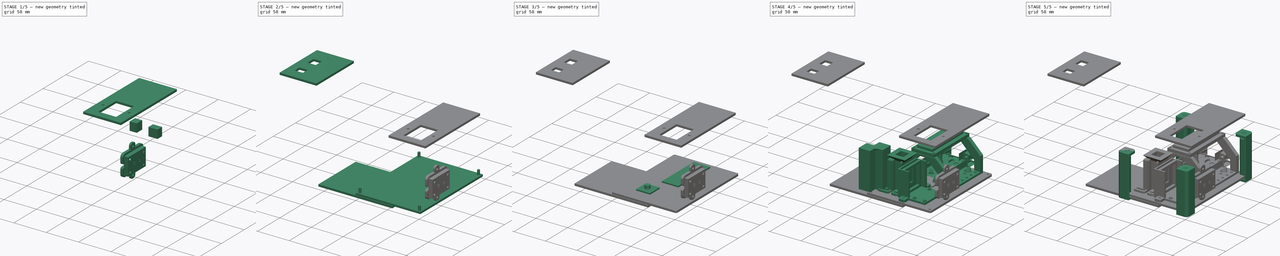
[diagram: build sequence overview — one tinted view per stage of 5, left to right]
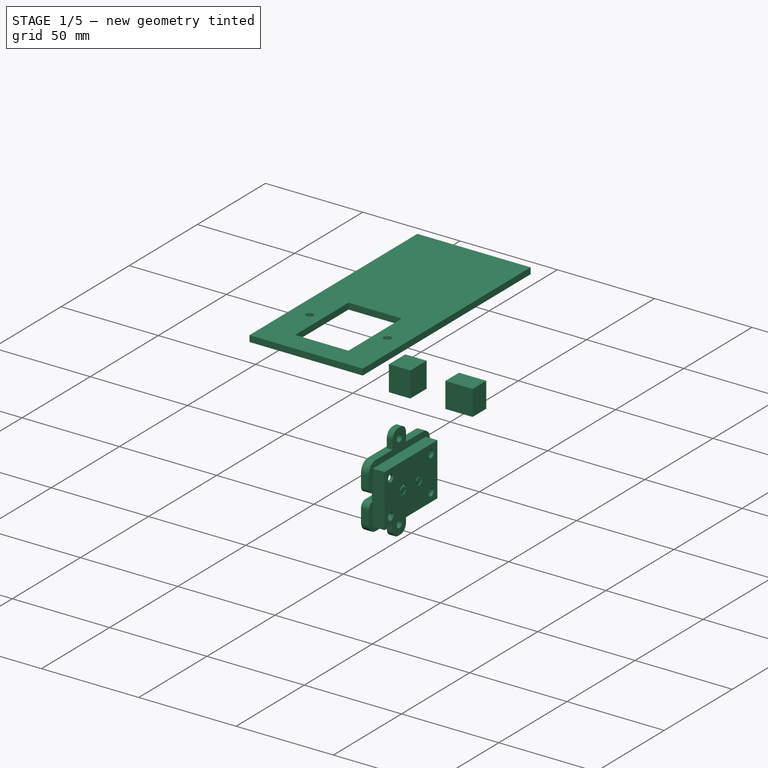
[diagram: stage 1 of 5 — iso view after this stage's code; geometry added in this stage tinted green]
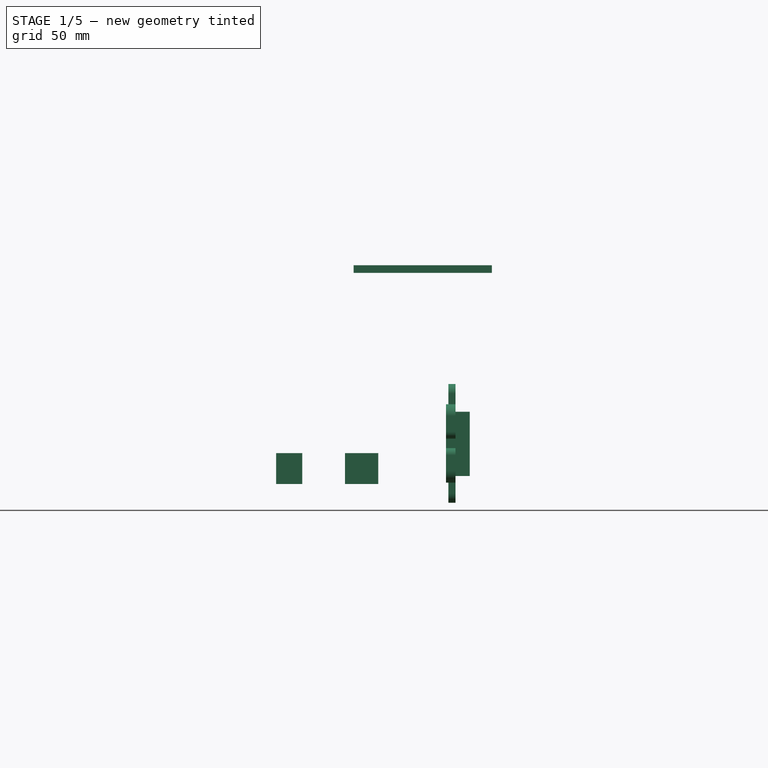
[diagram: stage 1 of 5 — front view after this stage's code; geometry added in this stage tinted green]
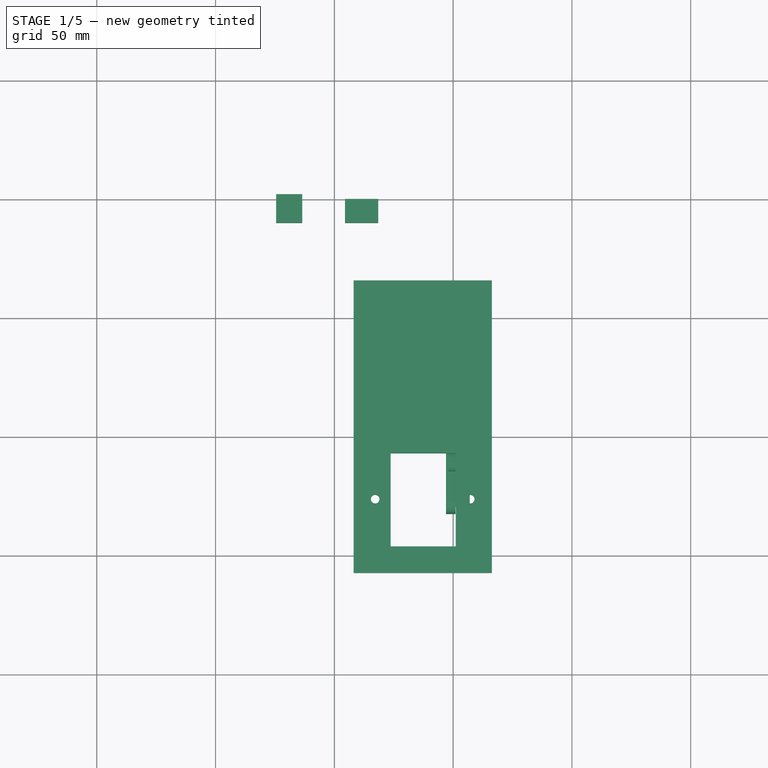
[diagram: stage 1 of 5 — top view after this stage's code; geometry added in this stage tinted green]
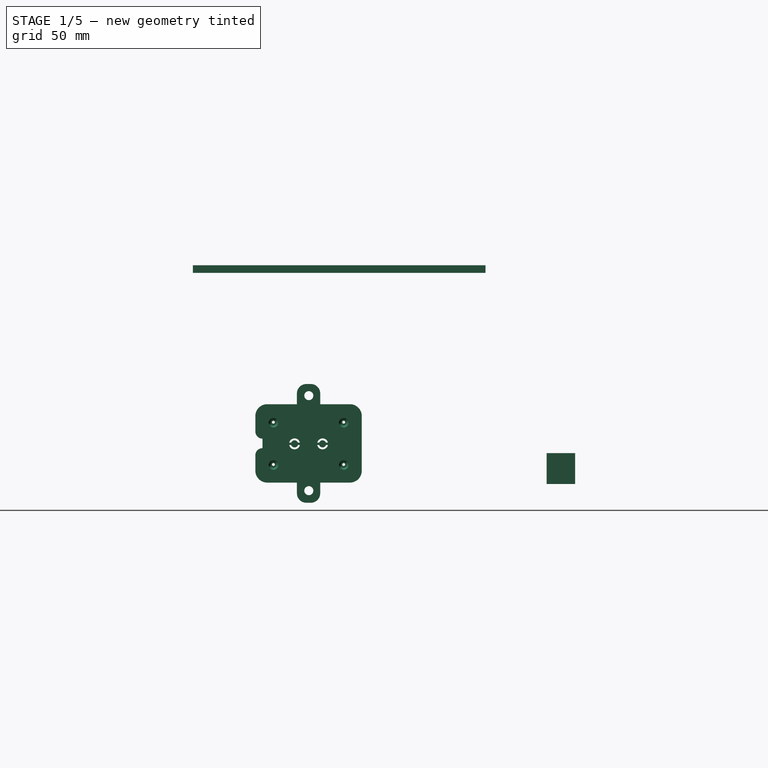
[diagram: stage 1 of 5 — right view after this stage's code; geometry added in this stage tinted green]
FCSTD DOCUMENT  (FreeCAD 0.19R23578 (Git))
Label: od600
License: FreeArt
LicenseURL: http://artlibre.org/licence/lal
objects: Part::FeaturePython×18, Part::Feature×11, Part::Box×11, Part::MultiFuse×9, Part::Mirroring×5, Part::Cut×5, App::Part×5, Part::Offset×5, TechDraw::DrawViewPart×5, Part::Cylinder×4, PartDesign::FeatureBase×4, PartDesign::Body×4, Part::Fillet×3, PartDesign::Plane×2, Sketcher::SketchObject×2, PartDesign::Pad×2, Part::Compound×2, Spreadsheet::Sheet×1, Part::Part2DObjectPython×1, Part::Cone×1, +3 more types
note: 90 computed .brp shape members not serialized (recipe doc carries the construction recipe); baked Part::Feature solids carry a one-line shape summary decoded from their .brp

FEATURE [TechDraw::DrawViewPart] hole_side_wall_contour001
  CoarseView = true
  Direction = (0,0,1)
  Focus = 100
  HardHidden = false
  IsoCount = 0
  IsoHidden = false
  IsoVisible = false
  LockPosition = false
  Perspective = false
  Rotation = 0
  ScaleType = 2
  SeamHidden = false
  SeamVisible = true
  SmoothHidden = false
  SmoothVisible = true
  Source = -> [hole_side_wall_offset001]
  X = 30.1
  XDirection = (1,0,0)
  Y = 289.9
FEATURE [Part::Box] Box016  label="power hole cube"
  AttacherType = Attacher::AttachEngine3D
  Height = 13
  Length = 11
  Placement = pos=(25.5,140,12) rot=(0,0,1;0rad)
  Width = 12
FEATURE [Part::Box] Box017  label="usb hole cube"
  AttacherType = Attacher::AttachEngine3D
  Height = 13
  Length = 14
  Placement = pos=(54.5,140,12) rot=(0,0,1;0rad)
  Width = 10
FEATURE [App::Part] Part009  label="y side wall part"
  Group = -> [Box015,Part__Mirroring003,Fusion002007,Box016,Box017,Cut003002014]
  Origin = -> Origin016
  Placement = pos=(0,-3,0) rot=(0,0,1;0rad)
FEATURE [Part::Box] Box018  label="x side wall"
  AttacherType = Attacher::AttachEngine3D
  Height = 58
  Length = 3
  Placement = pos=(0,9,0) rot=(0,0,1;0rad)
  Width = 123
  expr: Height = <<p>>.corner_internal_height + 2 * <<p>>.plate_z
  expr: .Placement.Base.y = <<p>>.corner_width - <<p>>.corner_removal_cube_off - <<p>>.plate_space_extract_off
  expr: Width = <<p>>.plate_y - 2 * (<<p>>.corner_width - <<p>>.corner_removal_cube_off - <<p>>.plate_space_extract_off)
FEATURE [TechDraw::DrawViewPart] hole_side_wall_cut_contour
  CoarseView = true
  Direction = (0,0,1)
  Focus = 100
  HardHidden = false
  IsoCount = 0
  IsoHidden = false
  IsoVisible = false
  LockPosition = false
  Perspective = false
  Rotation = 0
  ScaleType = 2
  SeamHidden = false
  SeamVisible = true
  SmoothHidden = false
  SmoothVisible = true
  Source = -> [hole_side_wall_cut_offset]
  X = 30.1
  XDirection = (1,0,0)
  Y = 513.7
FEATURE [Part::Mirroring] Part__Mirroring004  label="x side wall (Mirror #5)"
  Base = (52,0,0)
  Normal = (1,0,0)
  Source = -> Box018
  expr: .Base.x = <<p>>.plate_x / 2 + <<p>>.plate_z - 2
FEATURE [Part::Feature] Fillet003001  label="base cut fillet001"
  shape: bbox 44.8 x 50 x 4 mm, 46 faces (baked)
FEATURE [Part::Feature] Fusion005001  label="top cover plate fusion001"
  Placement = pos=(0,24,-5) rot=(1,0,0;3.14159rad)
  shape: bbox 38.8 x 27 x 6.5 mm, 37 faces (baked)
FEATURE [Part::MultiFuse] Fusion005002  label="2 buttons mockup"
  Placement = pos=(101,22,41) rot=(0.57735,0.57735,-0.57735;4.18879rad)
  Shapes = -> [Fusion005001,Fillet003001]
FEATURE [Part::Cylinder] Cylinder008  label="btn bolt hole"
  Angle = 360
  AttacherType = Attacher::AttachEngine3D
  Height = 10
  Placement = pos=(0,0,0) rot=(0,1,0;1.5708rad)
  Radius = 1.9
  expr: Radius = <<p>>.plate_hole_r
FEATURE [Part::FeaturePython] Array006  label="btn bolt hole array"  # Draft array (typed FeaturePython)
  Angle = 360
  ArrayType = 0
  Axis = (0,0,1)
  Base = -> Cylinder008
  Center = (0,0,0)
  Count = 2
  ExpandArray = false
  Fuse = false
  IntervalAxis = (0,0,0)
  IntervalX = (100,0,0)
  IntervalY = (0,100,0)
  IntervalZ = (0,0,40)
  NumberCircles = 3
  NumberPolar = 5
  NumberX = 1
  NumberY = 1
  NumberZ = 2
  Placement = pos=(100,40,9) rot=(0,0,1;0rad)
  PlacementList = 2 placements: [(0,0,0),(0,0,40)]
  RadialDistance = 50
  ScaleList = (2) [(1,1,1),(1,1,1)]
  Symmetry = 1
  TangentialDistance = 25
FEATURE [Part::Box] Box019  label="2 btn hole"
  AttacherType = Attacher::AttachEngine3D
  Height = 27.6
  Length = 10
  Placement = pos=(97,20,15) rot=(0,0,1;0rad)
  Width = 39.4
FEATURE [Part::MultiFuse] Fusion005003  label="wall hole fusion"
  Shapes = -> [Array006,Box019]
FEATURE [Part::Cut] Cut003002015  label="x side wall with hole"
  Base = -> Part__Mirroring004
  Tool = -> Fusion005003
FEATURE [App::Part] Part010  label="x side wall part"
  Group = -> [Box018,Part__Mirroring004,Cylinder008,Box019,Array006,Fusion005003,Cut003002015]
  Origin = -> Origin017
FEATURE [Part::Offset] x_side_wall_with_hole_offset
  Fill = false
  Intersection = false
  Join = 2
  Mode = 0
  Placement = pos=(116.2,-17.8,-8e-16) rot=(0,-1,0;1.5708rad)
  SelfIntersection = false
  Source = -> Cut003002015
  Value = 0.1
FEATURE [App::DocumentObjectGroup] LaserCutterExportObjects
  Group = -> [top_plate_cut_offset,hole_side_wall_offset001,x_side_wall_offset,hole_side_wall_cut_offset,x_side_wall_with_hole_offset]
FEATURE [TechDraw::DrawViewPart] x_side_wall_with_hole_contour
  CoarseView = true
  Direction = (0,0,1)
  Focus = 100
  HardHidden = false
  IsoCount = 0
  IsoHidden = false
  IsoVisible = false
  LockPosition = false
  Perspective = false
  Rotation = 0
  ScaleType = 2
  SeamHidden = false
  SeamVisible = true
  SmoothHidden = false
  SmoothVisible = true
  Source = -> [x_side_wall_with_hole_offset]
  X = 29.3
  XDirection = (1,0,0)
  Y = 621.6
FEATURE [TechDraw::DrawPage] LaserCutterExport
  KeepUpdated = true
  NextBalloonIndex = 1
  ProjectionType = 0
  Template = -> Template
  Views = -> [top_plate_cut_contour,hole_side_wall_contour001,x_side_wall_contour,hole_side_wall_cut_contour,x_side_wall_with_hole_contour]
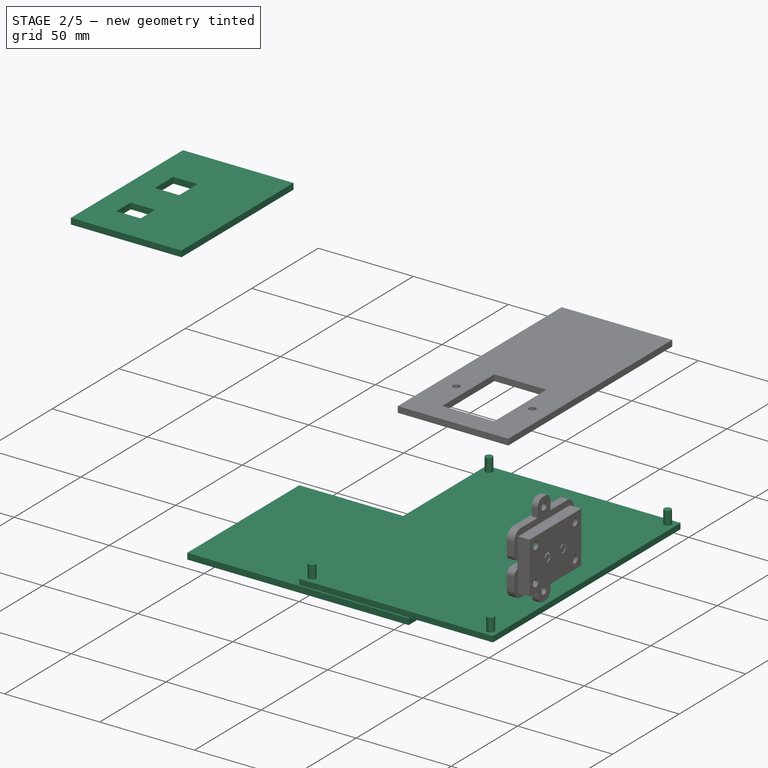
[diagram: stage 2 of 5 — iso view after this stage's code; geometry added in this stage tinted green]
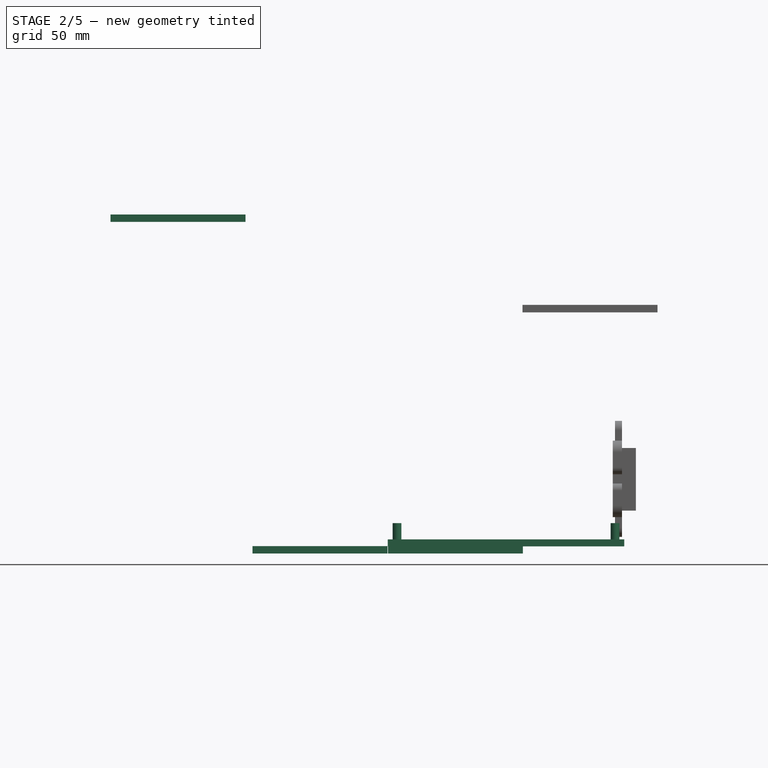
[diagram: stage 2 of 5 — front view after this stage's code; geometry added in this stage tinted green]
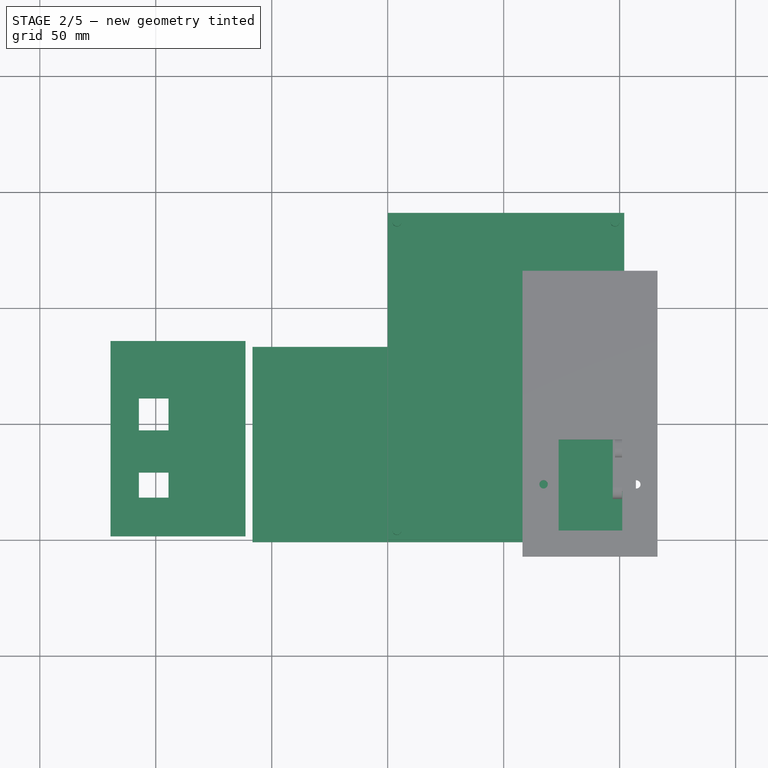
[diagram: stage 2 of 5 — top view after this stage's code; geometry added in this stage tinted green]
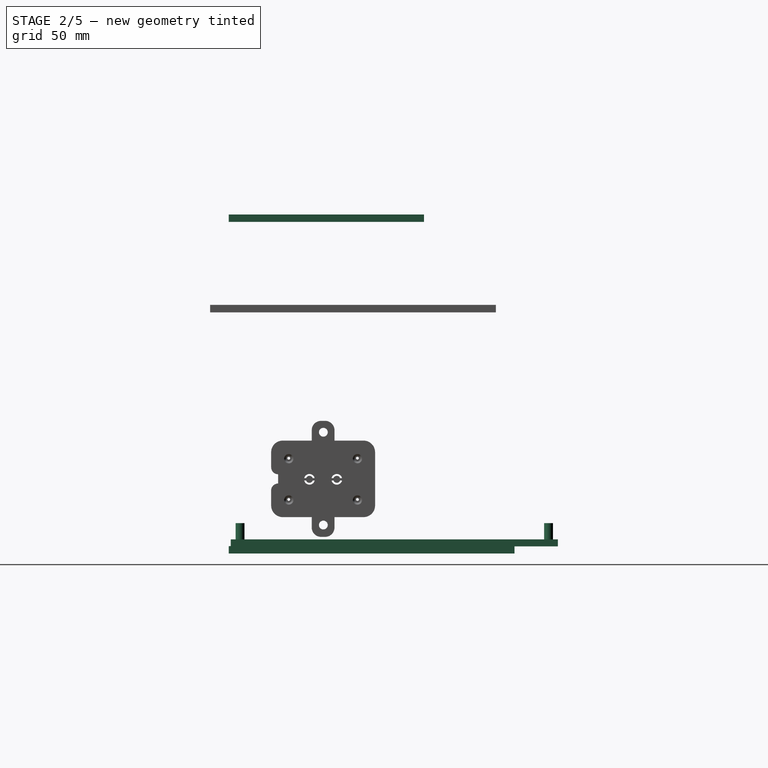
[diagram: stage 2 of 5 — right view after this stage's code; geometry added in this stage tinted green]
FEATURE [Spreadsheet::Sheet] Spreadsheet  label="p"
  cells = A1=plate_x; B1(plate_x)=102; A2=plate_y; B2(plate_y)=141; A3=plate_z; B3(plate_z)=3; A4=plate_hole_dist; B4(plate_hole_dist)==10mm; A5=plate_hole_r; B5(plate_hole_r)=1.9; A7=corner_width; B7(corner_width)=18; A8=corner_internal_height; B8(corner_internal_height)=52; A9=plate_space_z; B9(plate_space_z)=3.8; A10=plate_space_extract_off; B10(plate_space_extract_off)=5; A11=corner_top_z; B11(corner_top_z)=3.3; A12=corner_hole_dist; B12(corner_hole_dist)=9; A13=corner_hole_r; B13(corner_hole_r)=1; A14=corner_removal_cube_off; B14(corner_removal_cube_off)=4; A15=corner_wall; B15(corner_wall)=2
FEATURE [Part::Cylinder] Cylinder  label="plate hole"
  Angle = 360
  AttacherType = Attacher::AttachEngine3D
  Height = 10
  Radius = 1.9
  expr: Radius = <<p>>.plate_hole_r
FEATURE [Part::FeaturePython] Array  label="corner hole array"  # Draft array (typed FeaturePython)
  Angle = 360
  ArrayType = 0
  Axis = (0,0,1)
  Base = -> Cylinder
  Center = (0,0,0)
  Fuse = false
  IntervalAxis = (0,0,0)
  IntervalX = (94,0,0)
  IntervalY = (0,133,0)
  IntervalZ = (0,0,1)
  NumberPolar = 1
  NumberX = 2
  NumberY = 2
  NumberZ = 1
  Placement = pos=(4,4,0) rot=(0,0,1;0rad)
  expr: .IntervalX.x = <<p>>.plate_x - 2 * (<<p>>.corner_hole_dist - <<p>>.plate_space_extract_off)
  expr: .IntervalY.y = <<p>>.plate_y - 2 * (<<p>>.corner_hole_dist - <<p>>.plate_space_extract_off)
  expr: .Placement.Base.y = <<p>>.corner_hole_dist - <<p>>.plate_space_extract_off
  expr: .Placement.Base.x = <<p>>.corner_hole_dist - <<p>>.plate_space_extract_off
FEATURE [Part::Box] Box014  label="top plate"
  AttacherType = Attacher::AttachEngine3D
  Height = 3
  Length = 102
  Width = 141
  expr: Width = <<p>>.plate_y
  expr: Length = <<p>>.plate_x
FEATURE [App::Part] Part008  label="bottom plate part"
  Group = -> [Array,Point014,Point006,Box,PointArray,Point007,Block,Point002,Point003,Point,Point005,Point008,Point004,Cylinder,Point009,Point010,Point011,Point012,Point013,Fillet001,Fusion002005,Cut]
  Origin = -> Origin011
FEATURE [PartDesign::FeatureBase] Clone001
  BaseFeature = -> Array
  Placement = pos=(4,4,0) rot=(0,0,1;0rad)
FEATURE [Part::Box] Box015  label="hole side wall"
  AttacherType = Attacher::AttachEngine3D
  Height = 58
  Length = 84
  Placement = pos=(9,0,0) rot=(0,0,1;0rad)
  Width = 3
  expr: .Placement.Base.x = <<p>>.corner_width - <<p>>.corner_removal_cube_off - <<p>>.plate_space_extract_off
  expr: Length = <<p>>.plate_x - 2 * (<<p>>.corner_width - <<p>>.corner_removal_cube_off - <<p>>.plate_space_extract_off)
  expr: Height = <<p>>.corner_internal_height + 2 * <<p>>.plate_z
FEATURE [Part::Mirroring] Part__Mirroring003  label="hole side wall (Mirror #4)"
  Base = (0,71.5,0)
  Normal = (0,1,0)
  Source = -> Box015
  expr: .Base.y = <<p>>.plate_y / 2 + <<p>>.plate_z - 2
FEATURE [Part::Offset] hole_side_wall_offset001
  Fill = false
  Intersection = false
  Join = 2
  Mode = 0
  Placement = pos=(-0.2,-9.8,0) rot=(0.57735,0.57735,-0.57735;4.18879rad)
  SelfIntersection = false
  Source = -> Box015
  Value = 0.1
FEATURE [Part::MultiFuse] Fusion002007  label="side wall hole fusion"
  Shapes = -> [Box016,Box017]
FEATURE [Part::Cut] Cut003002014  label="hole side wall cut"
  Base = -> Part__Mirroring003
  Tool = -> Fusion002007
FEATURE [Part::Offset] x_side_wall_offset
  Fill = false
  Intersection = false
  Join = 2
  Mode = 0
  Placement = pos=(0.2,-9.8,0) rot=(0,1,0;1.5708rad)
  SelfIntersection = false
  Source = -> Box018
  Value = 0.1
FEATURE [TechDraw::DrawViewPart] x_side_wall_contour
  CoarseView = true
  Direction = (0,0,1)
  Focus = 100
  HardHidden = false
  IsoCount = 0
  IsoHidden = false
  IsoVisible = false
  LockPosition = false
  Perspective = false
  Rotation = 0
  ScaleType = 2
  SeamHidden = false
  SeamVisible = true
  SmoothHidden = false
  SmoothVisible = true
  Source = -> [x_side_wall_offset]
  X = 30.1
  XDirection = (1,0,0)
  Y = 401.8
FEATURE [Part::Offset] hole_side_wall_cut_offset
  Fill = false
  Intersection = false
  Join = 2
  Mode = 0
  Placement = pos=(-119.4,-9.8,0) rot=(0.57735,0.57735,0.57735;2.0944rad)
  SelfIntersection = false
  Source = -> Cut003002014
  Value = 0.1
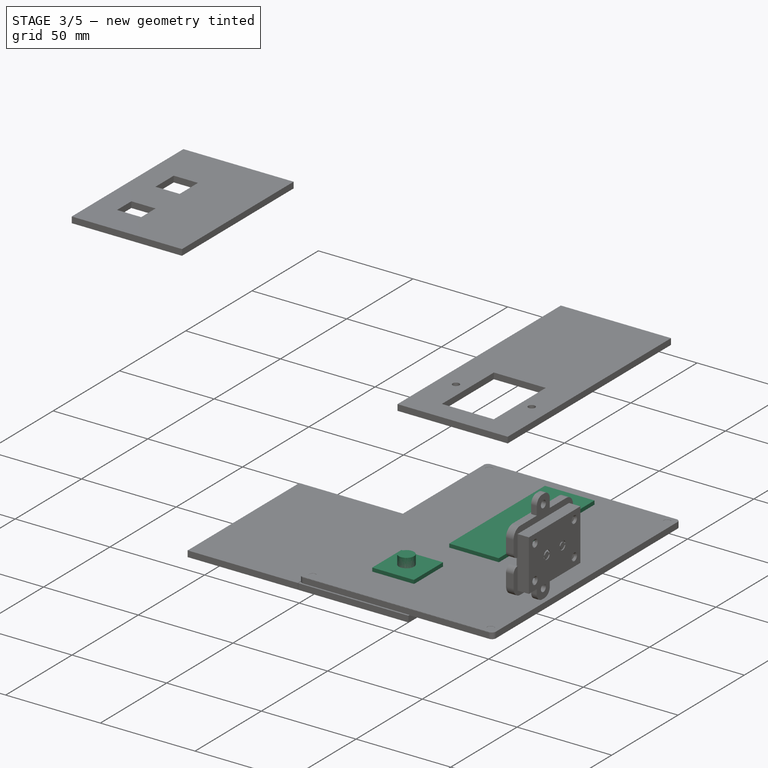
[diagram: stage 3 of 5 — iso view after this stage's code; geometry added in this stage tinted green]
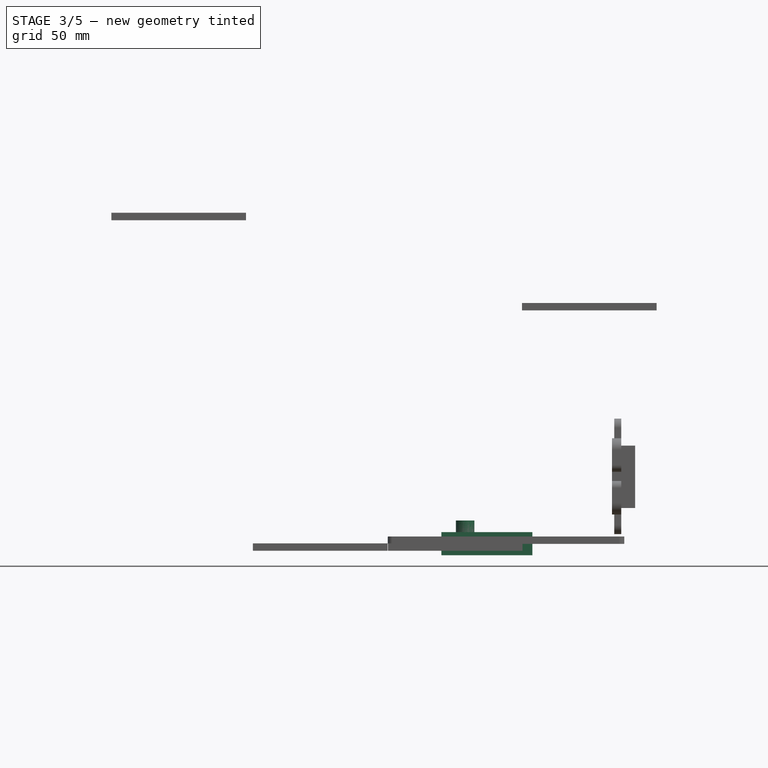
[diagram: stage 3 of 5 — front view after this stage's code; geometry added in this stage tinted green]
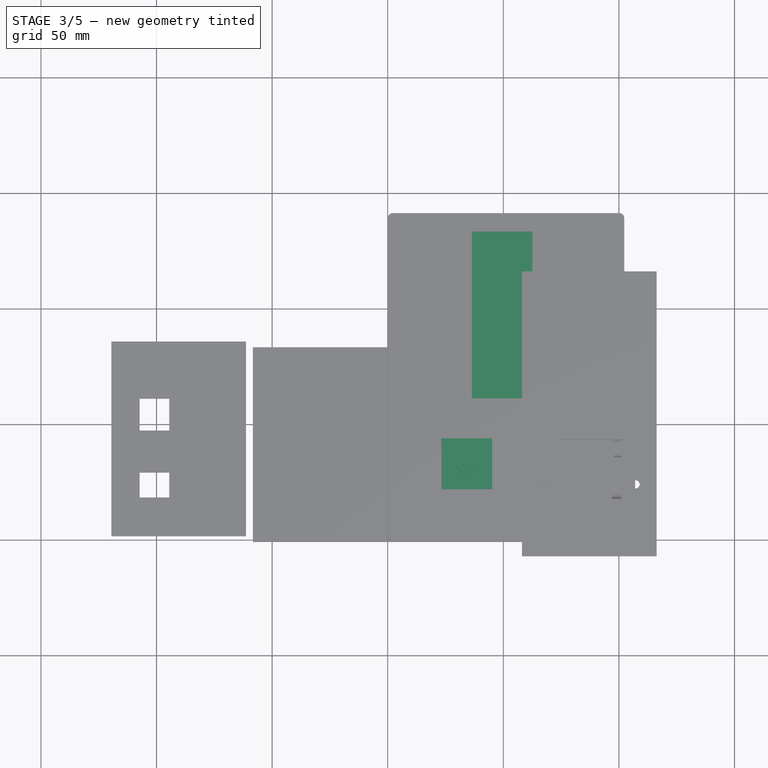
[diagram: stage 3 of 5 — top view after this stage's code; geometry added in this stage tinted green]
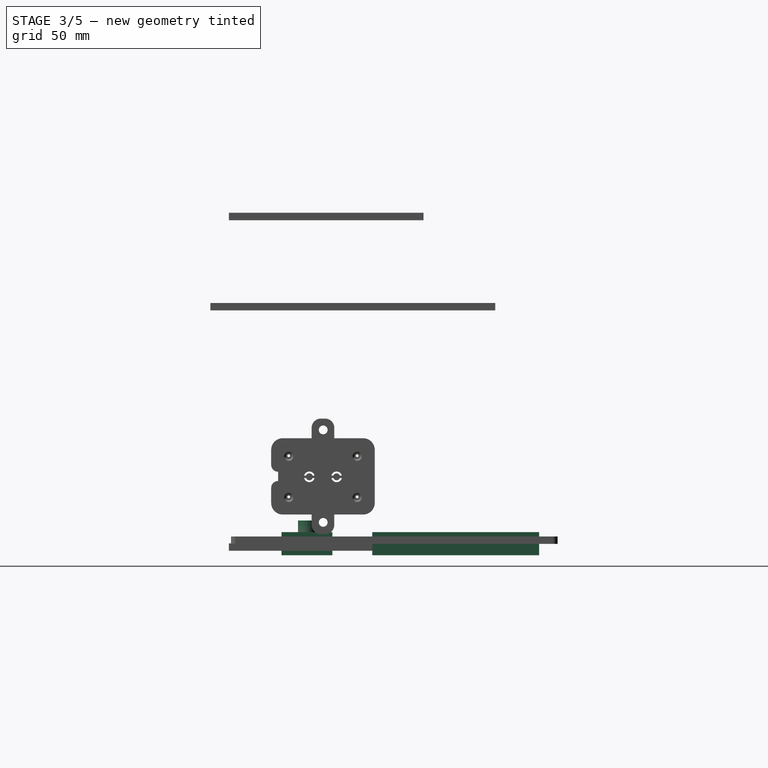
[diagram: stage 3 of 5 — right view after this stage's code; geometry added in this stage tinted green]
FEATURE [Part::Feature] Cut002001  label="lighter holder cut001"
  shape: bbox 43.4 x 61.2 x 41 mm, 55 faces (baked)
FEATURE [Part::Feature] Cut002002  label="cuvette box cut001"
  Placement = pos=(17.7,12.6,0) rot=(0,0,1;0rad)
  shape: bbox 15.2 x 40 x 47 mm, 54 faces (baked)
FEATURE [Part::Feature] Compound002  label="photo resistor compound001"
  Placement = pos=(35.5,8.6,0) rot=(0,0,1;0rad)
  shape: bbox 17.8 x 40 x 47 mm, 37 faces, 2 solids (baked)
FEATURE [Part::Feature] Cut001  label="big hole plate cut"
  Placement = pos=(60.5,-189,-3) rot=(0,0,1;1.5708rad)
  shape: bbox 100 x 300 x 3 mm, 306 faces (baked)
FEATURE [Part::Feature] Solid  label="Arduino"
  Placement = pos=(14.6,115.3,43) rot=(0,0,1;3.14159rad)
  shape: large baked B-rep (35 MB .brp); summary skipped
FEATURE [Part::Feature] Cut003002001  label="lcd holder"
  Placement = pos=(90,57,3) rot=(0,0,1;1.5708rad)
  shape: bbox 80 x 80.4 x 46 mm, 42 faces (baked)
  expr: .Placement.Base.z = <<top plate>>.Height
FEATURE [Part::Feature] Fusion002002  label="uno plate"
  Placement = pos=(20.4,132.5,3) rot=(0,0,-1;1.5708rad)
  shape: bbox 58.3 x 63 x 8 mm, 38 faces (baked)
  expr: .Placement.Base.z = <<top plate>>.Height
FEATURE [Part::Feature] Cut003003  label="lcd mockup"
  Placement = pos=(31.8,137.3,49.5) rot=(0,0,-1;1.5708rad)
  shape: bbox 36.4 x 80.4 x 8.5 mm, 15 faces (baked)
FEATURE [Part::Box] Box  label="bottom_plate"
  AttacherType = Attacher::AttachEngine3D
  Height = 3
  Length = 102
  Width = 141
  expr: Width = <<p>>.plate_y
  expr: Length = <<p>>.plate_x
FEATURE [Part::Fillet] Fillet001  label="bottom plate fillet"
  Base = -> Box
  Edges = 4 edges r=2: [Edge1,Edge3,Edge5,Edge7]
FEATURE [Part::Fillet] Fillet002  label="top plate fillet"
  Base = -> Box014
  Edges = 4 edges r=2: [Edge1,Edge3,Edge5,Edge7]
FEATURE [PartDesign::Plane] DatumPlane  label="cuvette DatumPlane"
  Length = 60
  MapMode = 5
  Placement = pos=(0,0,3) rot=(0,0,1;0rad)
  ResizeMode = 0
  Support = -> [Box014]
  Width = 60
FEATURE [PartDesign::Plane] DatumPlane001  label="lcd DatumPlane"
  Length = 60
  MapMode = 5
  Placement = pos=(0,0,3) rot=(0,0,1;0rad)
  ResizeMode = 0
  Support = -> [Box014]
  Width = 60
FEATURE [Sketcher::SketchObject] Sketch  label="lcd hole sketch"
  MapMode = 5
  Placement = pos=(0,0,3) rot=(0,0,1;0rad)
  Support = -> [DatumPlane001]
  sketch-geometry (4):
    g0: LineSegment StartX=36.3887 StartY=133.283 StartZ=0 EndX=62.5555 EndY=133.283 EndZ=0
    g1: LineSegment StartX=62.5555 StartY=133.283 StartZ=0 EndX=62.5555 EndY=61.1247 EndZ=0
    g2: LineSegment StartX=62.5555 StartY=61.1247 StartZ=0 EndX=36.3887 EndY=61.1247 EndZ=0
    g3: LineSegment StartX=36.3887 StartY=61.1247 StartZ=0 EndX=36.3887 EndY=133.283 EndZ=0
  constraints (8):
    c: Coincident(g0,g1)
    c: Coincident(g1,g2)
    c: Coincident(g2,g3)
    c: Coincident(g3,g0)
    c: Horizontal(g0)
    c: Horizontal(g2)
    c: Vertical(g1)
    c: Vertical(g3)
FEATURE [Sketcher::SketchObject] Sketch001  label="cuvette hole sketch"
  MapMode = 5
  Placement = pos=(0,0,3) rot=(0,0,1;0rad)
  Support = -> [DatumPlane001]
  sketch-geometry (4):
    g0: LineSegment StartX=23.2189 StartY=43.873 StartZ=0 EndX=45.2189 EndY=43.873 EndZ=0
    g1: LineSegment StartX=45.2189 StartY=21.873 StartZ=0 EndX=23.2189 EndY=21.873 EndZ=0
    g2: LineSegment StartX=23.2189 StartY=21.873 StartZ=0 EndX=23.2189 EndY=43.873 EndZ=0
    g3: LineSegment StartX=45.2189 StartY=43.873 StartZ=0 EndX=45.2189 EndY=21.873 EndZ=0
  constraints (10):
    c: Coincident(g1,g2)
    c: Coincident(g2,g0)
    c: Horizontal(g0)
    c: Vertical(g2)
    c: Equal(g0,g1)
    c: Coincident(g3,g0)
    c: Coincident(g3,g1)
    c: Equal(g2,g3)
    c: DistanceY(g2,g2) = 22
    c: DistanceX(g1,g1) = 22
FEATURE [PartDesign::Pad] Pad
  AllowMultiFace = false
  Direction = (1,1,1)
  Length = 10
  Length2 = 100
  Midplane = true
  Placement = pos=(0,0,3) rot=(0,0,1;0rad)
  Profile = -> Sketch
  Type = 0
FEATURE [PartDesign::Pad] Pad001
  AllowMultiFace = false
  Direction = (1,1,1)
  Length = 10
  Length2 = 100
  Midplane = true
  Placement = pos=(0,0,3) rot=(0,0,1;0rad)
  Profile = -> Sketch001
  Type = 0
FEATURE [PartDesign::FeatureBase] BaseFeature
  BaseFeature = -> Pad
FEATURE [PartDesign::Body] Body003  label="cuvette hole"
  BaseFeature = -> Pad
  Group = -> [BaseFeature,DatumPlane]
  Origin = -> Origin014
  Tip = -> BaseFeature
FEATURE [PartDesign::FeatureBase] BaseFeature001
  BaseFeature = -> Pad001
FEATURE [PartDesign::Body] Body002  label="lcd hole"
  BaseFeature = -> Pad001
  Group = -> [BaseFeature001,DatumPlane001]
  Origin = -> Origin013
  Tip = -> BaseFeature001
FEATURE [Part::Cylinder] Cylinder007  label="cuvette bottom hole"
  Angle = 360
  AttacherType = Attacher::AttachEngine3D
  Height = 10
  Placement = pos=(33.5,33,0) rot=(0,0,1;0rad)
  Radius = 4
FEATURE [PartDesign::Body] Body004  label="corner hole array clone"
  BaseFeature = -> Array
  Group = -> [Clone001]
  Origin = -> Origin015
  Tip = -> Clone001
FEATURE [Part::MultiFuse] Fusion002006  label="top plate extract fusion"
  Shapes = -> [Pad,Pad001,Body004]
FEATURE [Part::Cut] Cut003002002  label="top plate cut"
  Base = -> Fillet002
  Tool = -> Fusion002006
FEATURE [App::Part] Part  label="top plate part"
  Group = -> [Box014,Fillet002,Body002,Body003,Pad,Sketch001,Fusion002006,Pad001,Sketch,Cut003002002]
  Origin = -> Origin010
  Placement = pos=(0,0,55) rot=(0,0,1;0rad)
  expr: .Placement.Base.z = <<p>>.corner_internal_height + 3
FEATURE [TechDraw::DrawSVGTemplate] Template
  Height = 683.4
  Orientation = 0
  Width = 102.6
FEATURE [Part::Offset] top_plate_cut_offset
  Fill = false
  Intersection = false
  Join = 2
  Mode = 0
  Placement = pos=(0.2,0.2,0) rot=(0,0,1;0rad)
  SelfIntersection = false
  Source = -> Cut003002002
  Value = 0.1
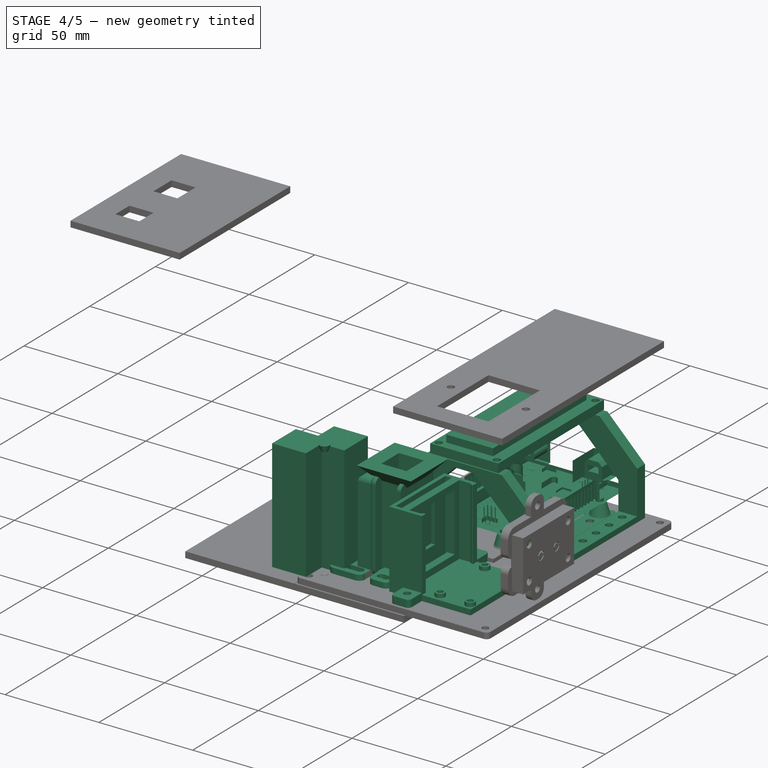
[diagram: stage 4 of 5 — iso view after this stage's code; geometry added in this stage tinted green]
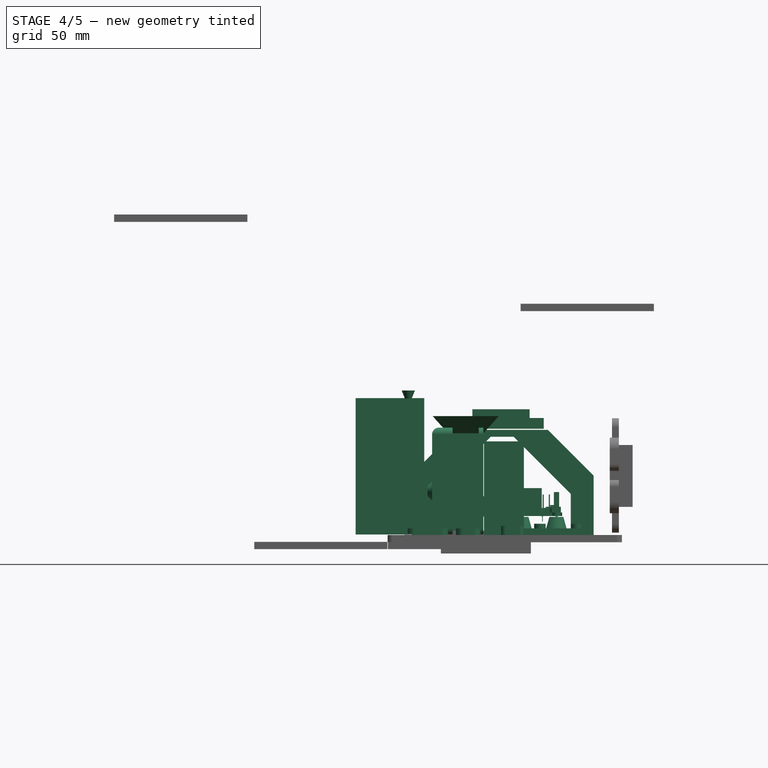
[diagram: stage 4 of 5 — front view after this stage's code; geometry added in this stage tinted green]
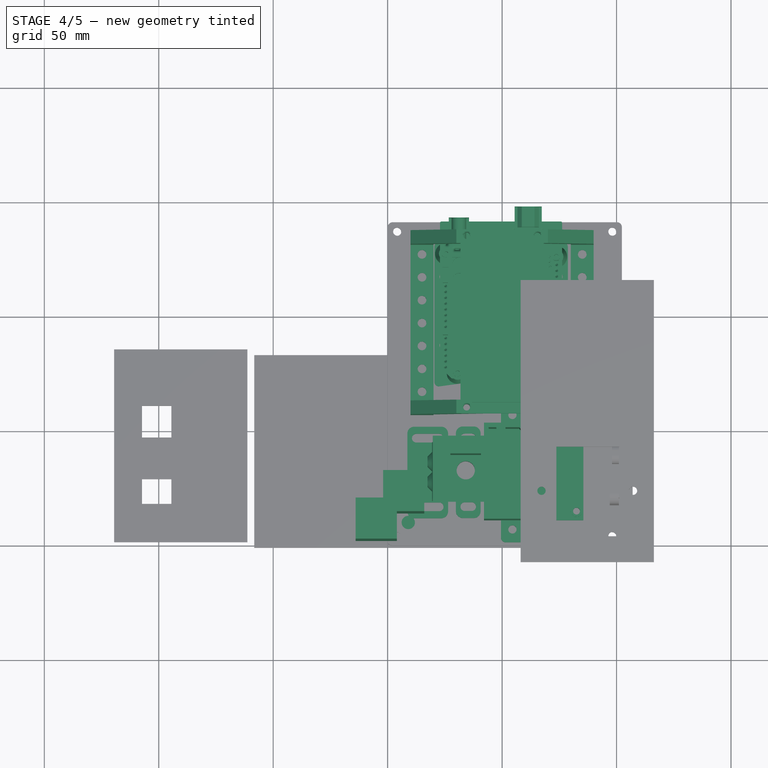
[diagram: stage 4 of 5 — top view after this stage's code; geometry added in this stage tinted green]
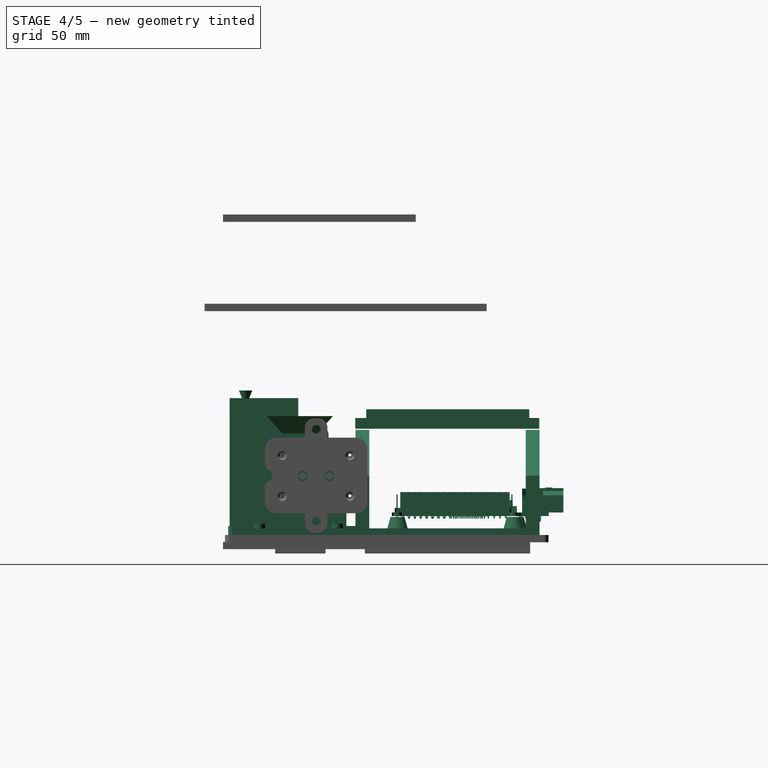
[diagram: stage 4 of 5 — right view after this stage's code; geometry added in this stage tinted green]
FEATURE [Part::FeaturePython] Point002  # WARN: FeaturePython — macro-defined, semantics opaque (R4)
  X = -14.5
  Y = 45.7
  Z = 0
FEATURE [Part::FeaturePython] Point  # WARN: FeaturePython — macro-defined, semantics opaque (R4)
  X = -14.5
  Y = 85.7
  Z = 0
FEATURE [Part::FeaturePython] Point003  # WARN: FeaturePython — macro-defined, semantics opaque (R4)
  X = 55.5
  Y = 85.7
  Z = 0
FEATURE [Part::FeaturePython] Point004  # WARN: FeaturePython — macro-defined, semantics opaque (R4)
  X = 55.5
  Y = 45.7
  Z = 0
FEATURE [Part::FeaturePython] Point005  # WARN: FeaturePython — macro-defined, semantics opaque (R4)
  X = -4.45
  Y = 86
  Z = 0
FEATURE [Part::FeaturePython] Point006  # WARN: FeaturePython — macro-defined, semantics opaque (R4)
  X = -4.45
  Y = 56
  Z = 0
FEATURE [Part::FeaturePython] Point007  # WARN: FeaturePython — macro-defined, semantics opaque (R4)
  X = 45.55
  Y = 56
  Z = 0
FEATURE [Part::FeaturePython] Point008  # WARN: FeaturePython — macro-defined, semantics opaque (R4)
  X = 45.55
  Y = 86
  Z = 0
FEATURE [Part::FeaturePython] Point009  # WARN: FeaturePython — macro-defined, semantics opaque (R4)
  X = 6
  Y = 15.5
  Z = 0
FEATURE [Part::FeaturePython] Point010  # WARN: FeaturePython — macro-defined, semantics opaque (R4)
  X = 6
  Y = -14.5
  Z = 0
FEATURE [Part::FeaturePython] Point011  # WARN: FeaturePython — macro-defined, semantics opaque (R4)
  X = -10
  Y = 15.4
  Z = 0
FEATURE [Part::FeaturePython] Point012  # WARN: FeaturePython — macro-defined, semantics opaque (R4)
  X = -10
  Y = -14.6
  Z = 0
FEATURE [Part::FeaturePython] Point013  # WARN: FeaturePython — macro-defined, semantics opaque (R4)
  X = 25.5
  Y = 25.5
  Z = 0
FEATURE [Part::FeaturePython] Point014  # WARN: FeaturePython — macro-defined, semantics opaque (R4)
  X = 25.5
  Y = -24.5
  Z = 0
FEATURE [Part::Part2DObjectPython] Block  # Draft 2D object (typed FeaturePython)
  Components = -> [Point002,Point,Point003,Point004,Point005,Point006,Point007,Point008,Point009,Point010,Point011,Point012,Point013,Point014]
FEATURE [Part::FeaturePython] PointArray  # Draft array (typed FeaturePython)
  Base = -> Cylinder
  Count = 14
  Placement = pos=(29,31.5,0) rot=(0,0,1;0rad)
  PointObject = -> Block
FEATURE [Part::Cone] Cone  label="screw head cone"
  Angle = 360
  AttacherType = Attacher::AttachEngine3D
  Height = 3.5
  Placement = pos=(9,9,0) rot=(0,0,1;0rad)
  Radius1 = 2.9
  Radius2 = 1.5
  expr: .Placement.Base.x = <<p>>.corner_hole_dist
  expr: .Placement.Base.y = <<p>>.corner_hole_dist
FEATURE [Part::Box] Box013  label="side cube001"
  AttacherType = Attacher::AttachEngine3D
  Height = 59.6
  Length = 18
  Placement = pos=(-2,14,3.3) rot=(0,0,1;0rad)
  Width = 18
  expr: .Placement.Base.x = -<<p>>.corner_wall
  expr: .Placement.Base.y = <<p>>.corner_width - <<p>>.corner_removal_cube_off
  expr: Width = <<p>>.corner_width
  expr: Length = <<p>>.corner_width
  expr: Height = <<p>>.corner_internal_height + 2 * <<p>>.plate_space_z
  expr: .Placement.Base.z = <<p>>.corner_top_z
FEATURE [Part::Box] Box012  label="side cube"
  AttacherType = Attacher::AttachEngine3D
  Height = 59.6
  Length = 18
  Placement = pos=(-14,2,3.3) rot=(0,0,1;0rad)
  Width = 18
  expr: .Placement.Base.y = <<p>>.corner_wall
  expr: .Placement.Base.x = -<<p>>.corner_width + <<p>>.corner_removal_cube_off
  expr: Width = <<p>>.corner_width
  expr: Length = <<p>>.corner_width
  expr: Height = <<p>>.corner_internal_height + 2 * <<p>>.plate_space_z
  expr: .Placement.Base.z = <<p>>.corner_top_z
FEATURE [Part::Box] Box010  label="outer_cube"
  AttacherType = Attacher::AttachEngine3D
  Height = 66.2
  Length = 18
  Width = 18
  expr: Height = <<p>>.corner_internal_height + 2 * <<p>>.plate_space_z + 2 * <<p>>.corner_top_z
  expr: Length = <<p>>.corner_width
  expr: Width = <<p>>.corner_width
FEATURE [Part::Mirroring] Part__Mirroring  label="screw head cone (Mirror #1)"
  Base = (0,0,33.1)
  Normal = (0,0,1)
  Source = -> Cone
  expr: .Base.z = <<outer_cube>>.Height / 2
FEATURE [Part::MultiFuse] Fusion  label="screw head cone fusion"
  Shapes = -> [Part__Mirroring,Cone]
FEATURE [Part::MultiFuse] Fusion002005  label="hole fusion"
  Shapes = -> [PointArray,Array,Cylinder007]
FEATURE [Part::Cut] Cut  label="bottom plate cut"
  Base = -> Fillet001
  Tool = -> Fusion002005
FEATURE [TechDraw::DrawViewPart] top_plate_cut_contour
  CoarseView = true
  Direction = (0,0,1)
  Focus = 100
  HardHidden = false
  IsoCount = 0
  IsoHidden = false
  IsoVisible = false
  LockPosition = false
  Perspective = false
  Rotation = 0
  ScaleType = 2
  SeamHidden = false
  SeamVisible = true
  SmoothHidden = false
  SmoothVisible = true
  Source = -> [top_plate_cut_offset]
  X = 51.3
  XDirection = (1,0,0)
  Y = 70.6
FEATURE [Part::Feature] Cut003002013  label="cuvette box cut012"
  Placement = pos=(17.7,12.6,0) rot=(0,0,1;0rad)
  shape: bbox 28.85 x 40 x 52 mm, 77 faces (baked)
FEATURE [Part::Compound] Compound  label="light compound"
  Links = -> [Cut002001,Compound002,Cut003002013]
  Placement = pos=(59.5,53,3) rot=(0,0,1;3.14159rad)
  expr: .Placement.Base.z = <<top plate>>.Height
FEATURE [Part::Compound] Compound003  label="plate on compound"
  Links = -> [Compound,Solid,Cut003002001,Fusion002002,Cut003003]
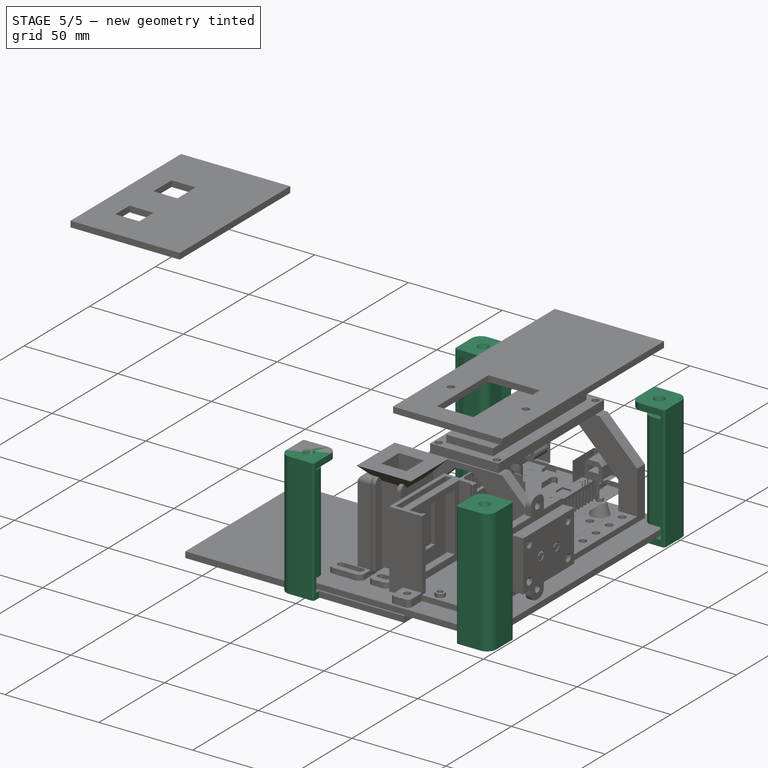
[diagram: stage 5 of 5 — iso view after this stage's code; geometry added in this stage tinted green]
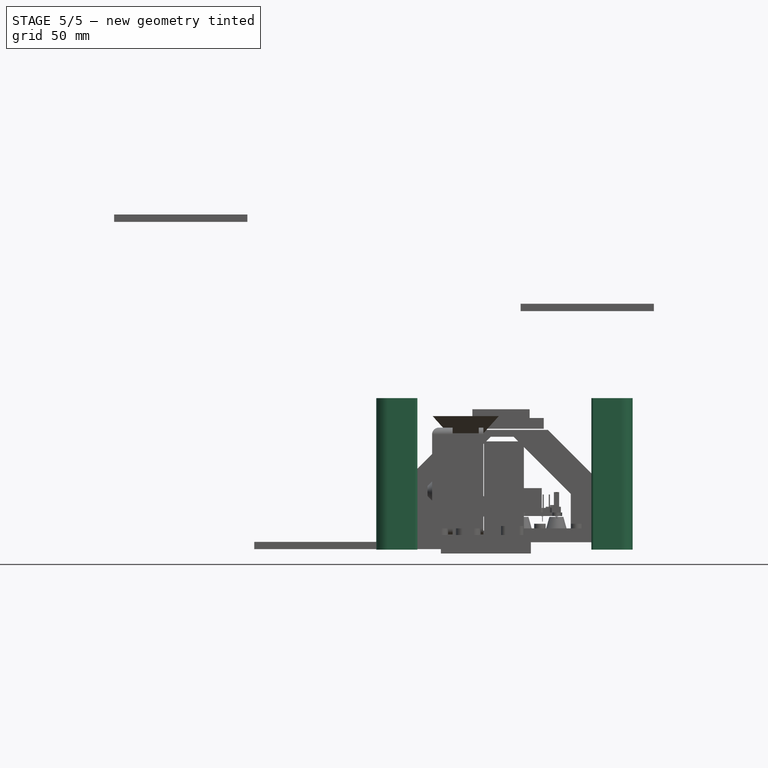
[diagram: stage 5 of 5 — front view after this stage's code; geometry added in this stage tinted green]
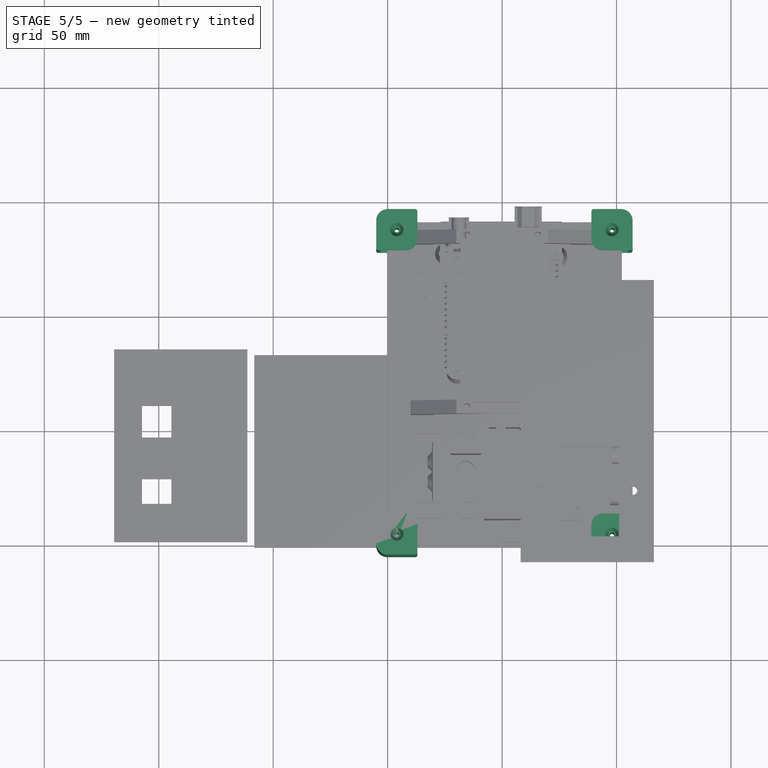
[diagram: stage 5 of 5 — top view after this stage's code; geometry added in this stage tinted green]
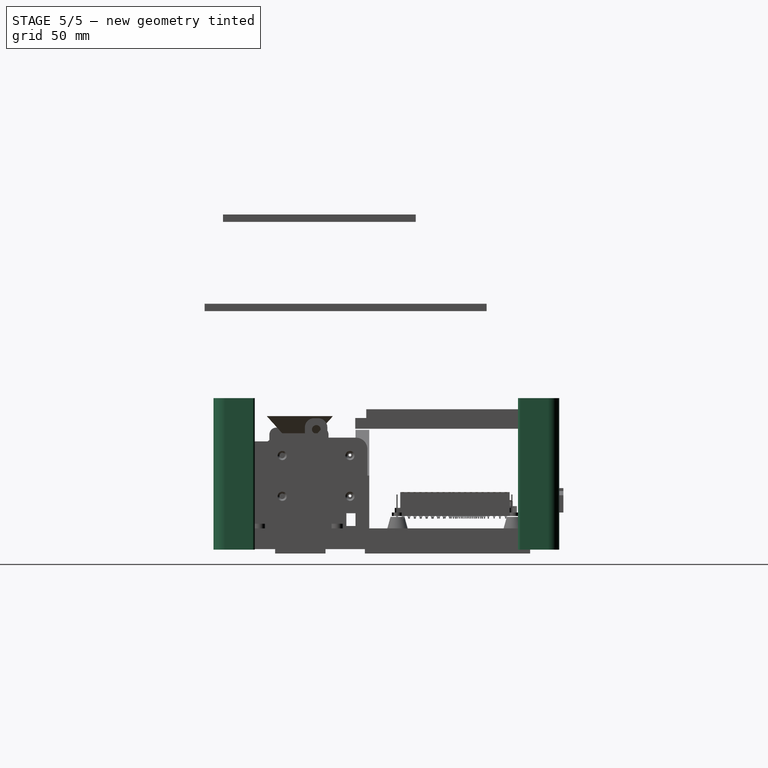
[diagram: stage 5 of 5 — right view after this stage's code; geometry added in this stage tinted green]
FEATURE [Part::Box] Box011  label="plate_insert_extract_cube"
  AttacherType = Attacher::AttachEngine3D
  Height = 3.8
  Length = 18
  Placement = pos=(-5,5,0) rot=(0,0,1;0rad)
  Width = 18
  expr: Height = <<p>>.plate_space_z
  expr: Length = <<p>>.corner_width
  expr: Width = <<p>>.corner_width
  expr: .Placement.Base.x = -<<p>>.plate_space_extract_off
  expr: .Placement.Base.y = <<p>>.plate_space_extract_off
FEATURE [Part::FeaturePython] Array005  label="corner extract array"  # Draft array (typed FeaturePython)
  Angle = 360
  ArrayType = 0
  Axis = (0,0,1)
  Base = -> Box011
  Center = (0,0,0)
  Fuse = false
  IntervalAxis = (0,0,0)
  IntervalX = (1,0,0)
  IntervalY = (0,1,0)
  IntervalZ = (0,0,55.8)
  NumberPolar = 1
  NumberX = 1
  NumberY = 1
  NumberZ = 2
  Placement = pos=(0,0,3.3) rot=(0,0,1;0rad)
  expr: .IntervalZ.z = <<p>>.corner_internal_height + <<p>>.plate_space_z
  expr: .Placement.Base.z = <<p>>.corner_top_z
FEATURE [Part::Cylinder] Cylinder006  label="corner screw hole"
  Angle = 360
  AttacherType = Attacher::AttachEngine3D
  Height = 66.2
  Placement = pos=(9,9,0) rot=(0,0,1;0rad)
  Radius = 1
  expr: Height = <<outer_cube>>.Height
  expr: .Placement.Base.x = <<p>>.corner_hole_dist
  expr: .Placement.Base.y = <<p>>.corner_hole_dist
FEATURE [Part::MultiFuse] Fusion003  label="corner extract fusion"
  Shapes = -> [Array005,Cylinder006,Box013,Box012,Fusion]
FEATURE [Part::Cut] Cut005  label="corner cut"
  Base = -> Box010
  Tool = -> Fusion003
FEATURE [Part::Fillet] Fillet  label="corner fillet"
  Base = -> Cut005
  Edges = 6 edges: [Edge2 r=5,Edge10 r=5,Edge12 r=1,Edge17 r=1,Edge42 r=5,Edge58 r=4]
FEATURE [App::Part] Part007  label="corner part"
  Group = -> [Box011,Array005,Cylinder006,Box013,Box012,Fusion003,Box010,Cut005,Fillet]
  Origin = -> Origin009
FEATURE [PartDesign::FeatureBase] Clone
  BaseFeature = -> Fillet
FEATURE [PartDesign::Body] Body  label="corner clone"
  BaseFeature = -> Fillet
  Group = -> [Clone]
  Origin = -> Origin
  Tip = -> Clone
FEATURE [Part::Mirroring] Part__Mirroring001  label="corner clone (Mirror #2)"
  Base = (0,75.5,0)
  Normal = (0,1,0)
  Source = -> Body
FEATURE [Part::MultiFuse] Fusion002003  label="corner pair fusion"
  Shapes = -> [Part__Mirroring001,Body]
FEATURE [Part::Mirroring] Part__Mirroring002  label="corner pair fusion (Mirror #3)"
  Base = (-38,0,0)
  Normal = (1,0,0)
  Source = -> Fusion002003
FEATURE [Part::MultiFuse] Fusion002004  label="four corner fusion"
  Placement = pos=(89,-5,-3.3) rot=(0,0,1;0rad)
  Shapes = -> [Part__Mirroring002,Fusion002003]
  expr: .Placement.Base.z = -<<p>>.corner_top_z
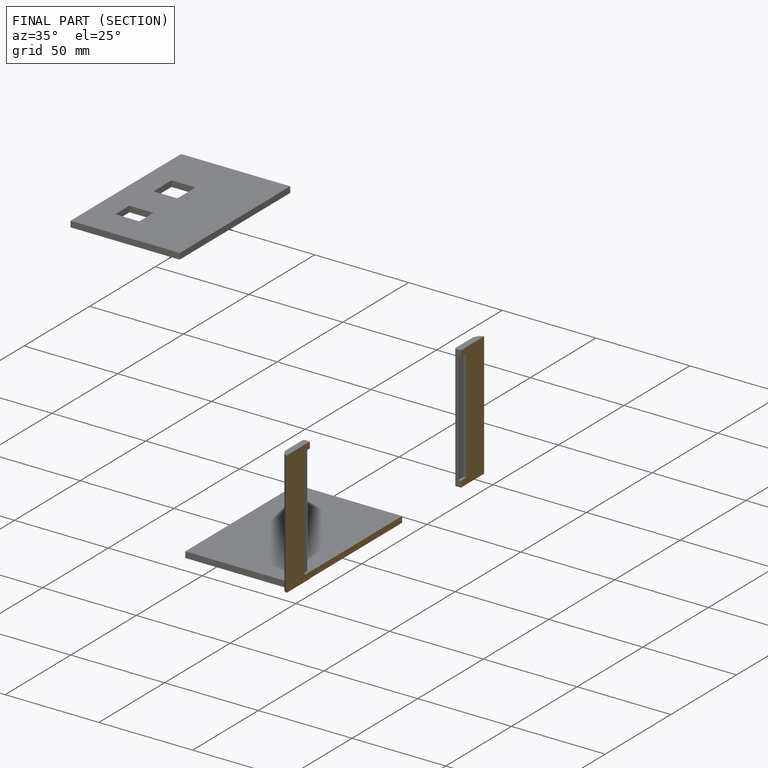
[diagram: finished part — half-section view (interior)]
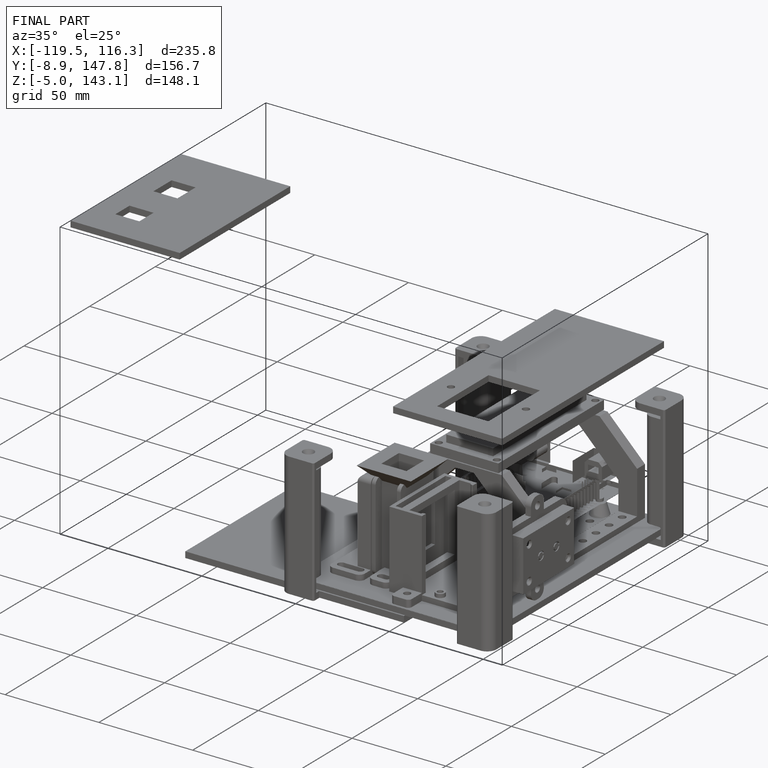
[diagram: finished part — iso view with bounding-box wireframe]
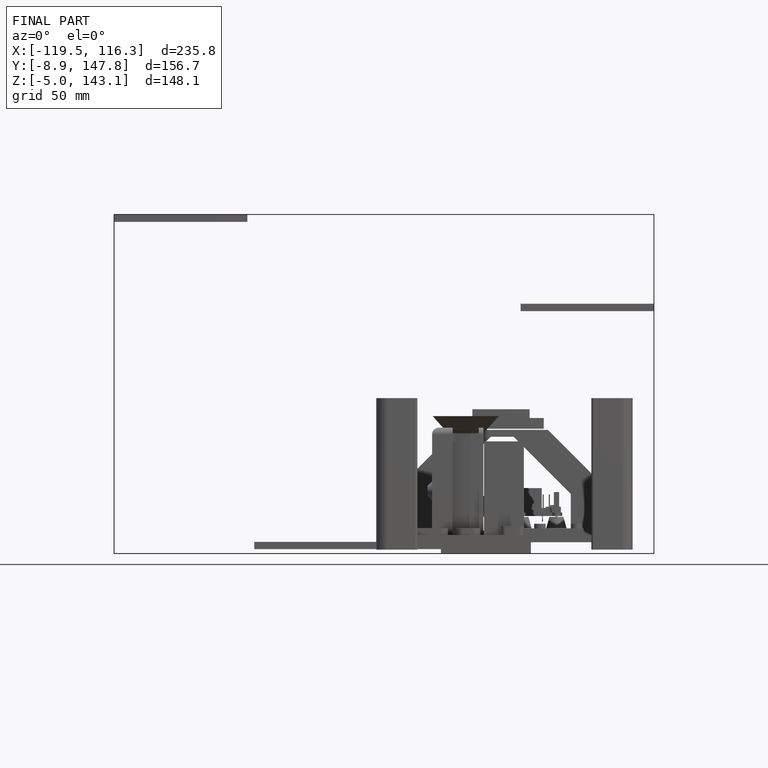
[diagram: finished part — front view with bounding-box wireframe]
